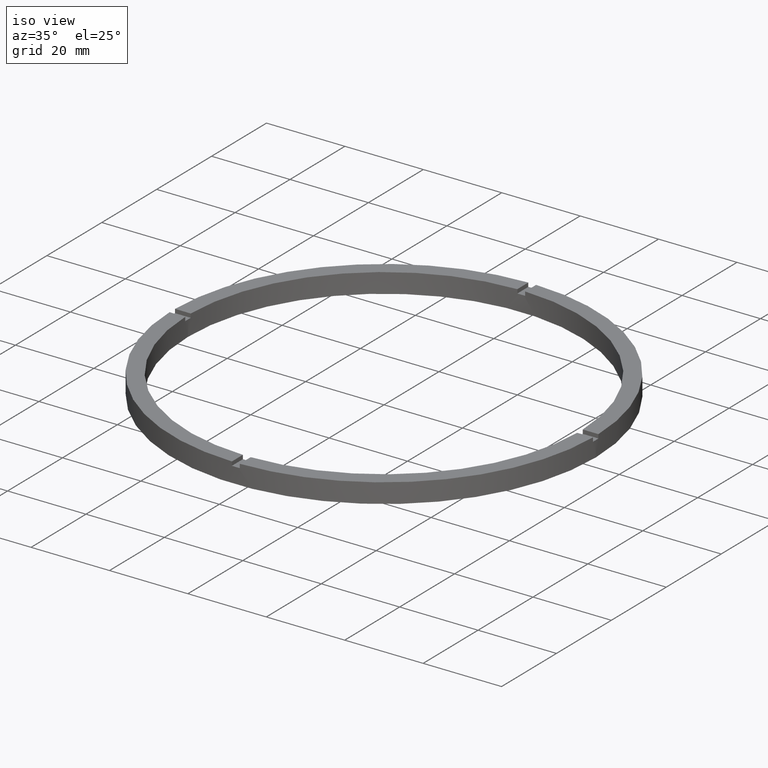
[diagram: clean part render]
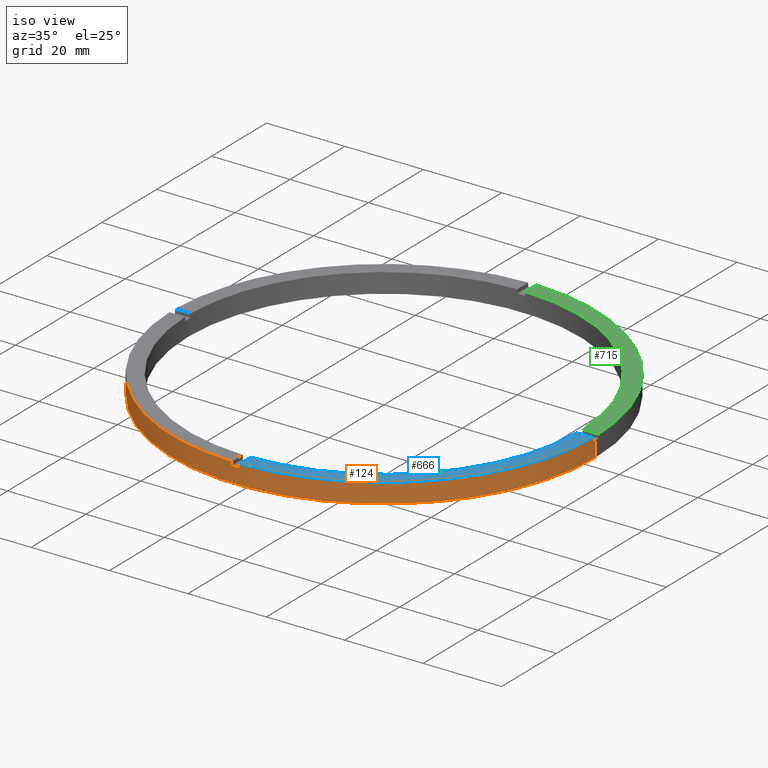
[diagram: same view with three faces highlighted in distinct colors, each labeled with its STEP entity id]
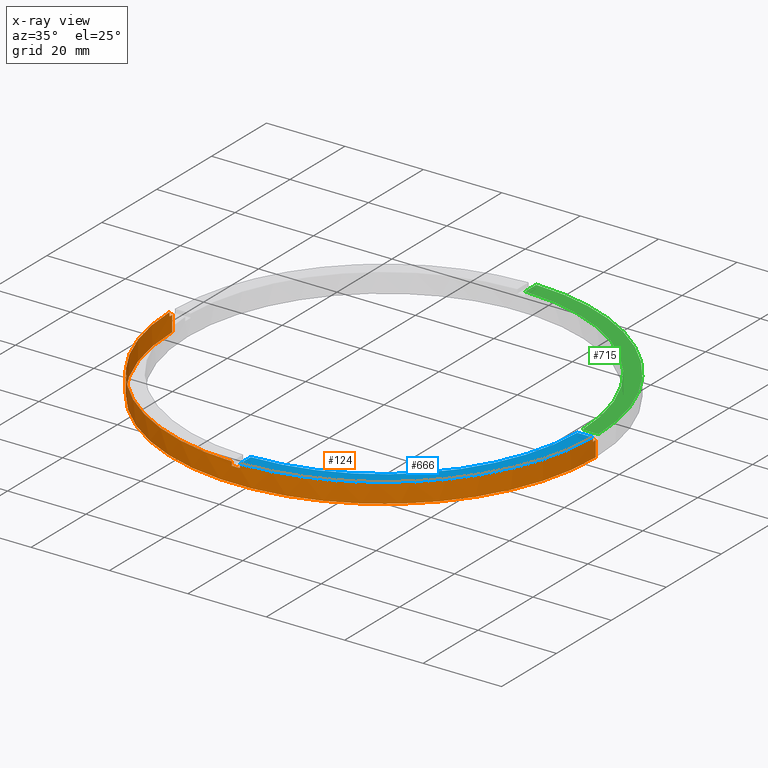
[diagram: x-ray of the same camera — body ghosted, the three highlighted faces saturated]
A machine part, iso view with three faces highlighted in distinct colors.
The next image is the same camera in x-ray (body ghosted, the three faces saturated) — at least one of them is partly hidden behind the body in this view.
Their STEP definitions:

[orange] entity #124 — the highlighted cylindrical surface (partial cylindrical patch) has radius 54 mm, axis along (-0, -0, -1).
#2 = CARTESIAN_POINT ( 'NONE',  ( 0.000000000000000000, 0.000000000000000000, 0.000000000000000000 ) ) ;
#4 = EDGE_CURVE ( 'NONE', #159, #285, #277, .T. ) ;
#15 = CARTESIAN_POINT ( 'NONE',  ( 54.00000000000000000, 6.613092715395707467E-15, 4.000000000000000000 ) ) ;
#27 = VECTOR ( 'NONE', #434, 1000.000000000000000 ) ;
#63 = FACE_OUTER_BOUND ( 'NONE', #186, .T. ) ;
#77 = LINE ( 'NONE', #770, #609 ) ;
#78 = CARTESIAN_POINT ( 'NONE',  ( 53.99073994677235078, -1.000000000000154321, 4.000000000000000000 ) ) ;
#82 = VECTOR ( 'NONE', #516, 1000.000000000000000 ) ;
#85 = EDGE_CURVE ( 'NONE', #689, #155, #546, .T. ) ;
#95 = LINE ( 'NONE', #487, #82 ) ;
#98 = CIRCLE ( 'NONE', #390, 54.00000000000000000 ) ;
#102 = CIRCLE ( 'NONE', #444, 54.00000000000000000 ) ;
#114 = ORIENTED_EDGE ( 'NONE', *, *, #248, .T. ) ;
#118 = ORIENTED_EDGE ( 'NONE', *, *, #231, .T. ) ;
#123 = ORIENTED_EDGE ( 'NONE', *, *, #581, .F. ) ;
#124 = ADVANCED_FACE ( 'NONE', ( #63 ), #316, .T. ) ;
#127 = ORIENTED_EDGE ( 'NONE', *, *, #85, .F. ) ;
#129 = CARTESIAN_POINT ( 'NONE',  ( -53.99073994677235078, -1.000000000000032863, 4.000000000000000000 ) ) ;
#150 = EDGE_CURVE ( 'NONE', #703, #191, #276, .T. ) ;
#155 = VERTEX_POINT ( 'NONE', #765 ) ;
#159 = VERTEX_POINT ( 'NONE', #649 ) ;
#160 = DIRECTION ( 'NONE',  ( 0.000000000000000000, 0.000000000000000000, 1.000000000000000000 ) ) ;
#165 = ORIENTED_EDGE ( 'NONE', *, *, #550, .F. ) ;
#185 = ORIENTED_EDGE ( 'NONE', *, *, #687, .F. ) ;
#186 = EDGE_LOOP ( 'NONE', ( #165, #616, #114, #127, #204, #185, #646, #700, #378, #123, #118, #468 ) ) ;
#188 = VERTEX_POINT ( 'NONE', #521 ) ;
#191 = VERTEX_POINT ( 'NONE', #15 ) ;
#198 = CARTESIAN_POINT ( 'NONE',  ( 0.9999999999998443467, -53.99073994677235788, 5.000000000000000000 ) ) ;
#204 = ORIENTED_EDGE ( 'NONE', *, *, #582, .T. ) ;
#229 = DIRECTION ( 'NONE',  ( 1.000000000000000000, 0.000000000000000000, 0.000000000000000000 ) ) ;
#231 = EDGE_CURVE ( 'NONE', #188, #556, #552, .T. ) ;
#242 = CARTESIAN_POINT ( 'NONE',  ( 0.000000000000000000, 0.000000000000000000, 5.000000000000000000 ) ) ;
#243 = AXIS2_PLACEMENT_3D ( 'NONE', #2, #675, #624 ) ;
#248 = EDGE_CURVE ( 'NONE', #703, #155, #586, .T. ) ;
#249 = CARTESIAN_POINT ( 'NONE',  ( 0.000000000000000000, 0.000000000000000000, 5.000000000000000000 ) ) ;
#268 = DIRECTION ( 'NONE',  ( 0.000000000000000000, 0.000000000000000000, 1.000000000000000000 ) ) ;
#270 = DIRECTION ( 'NONE',  ( -0.000000000000000000, -0.000000000000000000, -1.000000000000000000 ) ) ;
#276 = CIRCLE ( 'NONE', #522, 54.00000000000000000 ) ;
#277 = LINE ( 'NONE', #506, #578 ) ;
#279 = CARTESIAN_POINT ( 'NONE',  ( -54.00000000000000000, 0.000000000000000000, 5.000000000000000000 ) ) ;
#282 = AXIS2_PLACEMENT_3D ( 'NONE', #249, #386, #445 ) ;
#285 = VERTEX_POINT ( 'NONE', #129 ) ;
#316 = CYLINDRICAL_SURFACE ( 'NONE', #383, 54.00000000000000000 ) ;
#344 = CARTESIAN_POINT ( 'NONE',  ( -54.00000000000000000, 0.000000000000000000, 0.000000000000000000 ) ) ;
#356 = LINE ( 'NONE', #680, #364 ) ;
#364 = VECTOR ( 'NONE', #268, 1000.000000000000000 ) ;
#378 = ORIENTED_EDGE ( 'NONE', *, *, #4, .T. ) ;
#379 = CARTESIAN_POINT ( 'NONE',  ( 0.000000000000000000, 0.000000000000000000, 4.000000000000000000 ) ) ;
#382 = EDGE_CURVE ( 'NONE', #159, #757, #102, .T. ) ;
#383 = AXIS2_PLACEMENT_3D ( 'NONE', #242, #270, #494 ) ;
#386 = DIRECTION ( 'NONE',  ( 0.000000000000000000, 0.000000000000000000, 1.000000000000000000 ) ) ;
#390 = AXIS2_PLACEMENT_3D ( 'NONE', #379, #428, #541 ) ;
#393 = CARTESIAN_POINT ( 'NONE',  ( -1.000000000000155653, -53.99073994677235078, 4.000000000000000000 ) ) ;
#394 = CARTESIAN_POINT ( 'NONE',  ( 0.000000000000000000, 0.000000000000000000, 4.000000000000000000 ) ) ;
#398 = DIRECTION ( 'NONE',  ( -0.000000000000000000, -0.000000000000000000, -1.000000000000000000 ) ) ;
#403 = DIRECTION ( 'NONE',  ( 1.000000000000000000, 0.000000000000000000, 0.000000000000000000 ) ) ;
#408 = DIRECTION ( 'NONE',  ( 0.000000000000000000, 0.000000000000000000, 1.000000000000000000 ) ) ;
#412 = VERTEX_POINT ( 'NONE', #513 ) ;
#428 = DIRECTION ( 'NONE',  ( -0.000000000000000000, 0.000000000000000000, 1.000000000000000000 ) ) ;
#434 = DIRECTION ( 'NONE',  ( -0.000000000000000000, -0.000000000000000000, -1.000000000000000000 ) ) ;
#444 = AXIS2_PLACEMENT_3D ( 'NONE', #725, #160, #229 ) ;
#445 = DIRECTION ( 'NONE',  ( 1.000000000000000000, 0.000000000000000000, 0.000000000000000000 ) ) ;
#450 = VERTEX_POINT ( 'NONE', #472 ) ;
#468 = ORIENTED_EDGE ( 'NONE', *, *, #658, .T. ) ;
#472 = CARTESIAN_POINT ( 'NONE',  ( 0.9999999999998443467, -53.99073994677235788, 4.000000000000000000 ) ) ;
#487 = CARTESIAN_POINT ( 'NONE',  ( 0.9999999999998443467, -53.99073994677235788, 5.000000000000000000 ) ) ;
#494 = DIRECTION ( 'NONE',  ( -1.000000000000000000, 0.000000000000000000, 0.000000000000000000 ) ) ;
#506 = CARTESIAN_POINT ( 'NONE',  ( -53.99073994677235078, -1.000000000000032863, 5.000000000000000000 ) ) ;
#513 = CARTESIAN_POINT ( 'NONE',  ( 54.00000000000000000, 6.613092715395707467E-15, 0.000000000000000000 ) ) ;
#516 = DIRECTION ( 'NONE',  ( -0.000000000000000000, -0.000000000000000000, -1.000000000000000000 ) ) ;
#521 = CARTESIAN_POINT ( 'NONE',  ( -54.00000000000000000, 0.000000000000000000, 4.000000000000000000 ) ) ;
#522 = AXIS2_PLACEMENT_3D ( 'NONE', #394, #701, #660 ) ;
#541 = DIRECTION ( 'NONE',  ( 1.000000000000000000, 0.000000000000000000, 0.000000000000000000 ) ) ;
#546 = CIRCLE ( 'NONE', #282, 54.00000000000000000 ) ;
#550 = EDGE_CURVE ( 'NONE', #191, #412, #77, .T. ) ;
#552 = LINE ( 'NONE', #279, #27 ) ;
#556 = VERTEX_POINT ( 'NONE', #344 ) ;
#565 = VECTOR ( 'NONE', #734, 1000.000000000000000 ) ;
#576 = CARTESIAN_POINT ( 'NONE',  ( 0.000000000000000000, 0.000000000000000000, 4.000000000000000000 ) ) ;
#578 = VECTOR ( 'NONE', #615, 1000.000000000000000 ) ;
#579 = VERTEX_POINT ( 'NONE', #393 ) ;
#581 = EDGE_CURVE ( 'NONE', #188, #285, #619, .T. ) ;
#582 = EDGE_CURVE ( 'NONE', #689, #450, #95, .T. ) ;
#586 = LINE ( 'NONE', #622, #565 ) ;
#596 = CIRCLE ( 'NONE', #243, 54.00000000000000000 ) ;
#609 = VECTOR ( 'NONE', #398, 1000.000000000000000 ) ;
#615 = DIRECTION ( 'NONE',  ( -0.000000000000000000, -0.000000000000000000, -1.000000000000000000 ) ) ;
#616 = ORIENTED_EDGE ( 'NONE', *, *, #150, .F. ) ;
#619 = CIRCLE ( 'NONE', #761, 54.00000000000000000 ) ;
#622 = CARTESIAN_POINT ( 'NONE',  ( 53.99073994677235078, -1.000000000000154321, 5.000000000000000000 ) ) ;
#624 = DIRECTION ( 'NONE',  ( 1.000000000000000000, 0.000000000000000000, 0.000000000000000000 ) ) ;
#646 = ORIENTED_EDGE ( 'NONE', *, *, #691, .T. ) ;
#649 = CARTESIAN_POINT ( 'NONE',  ( -53.99073994677235078, -1.000000000000032863, 5.000000000000000000 ) ) ;
#658 = EDGE_CURVE ( 'NONE', #556, #412, #596, .T. ) ;
#660 = DIRECTION ( 'NONE',  ( 1.000000000000000000, 0.000000000000000000, 0.000000000000000000 ) ) ;
#670 = CARTESIAN_POINT ( 'NONE',  ( -1.000000000000155653, -53.99073994677235078, 5.000000000000000000 ) ) ;
#675 = DIRECTION ( 'NONE',  ( 0.000000000000000000, 0.000000000000000000, 1.000000000000000000 ) ) ;
#680 = CARTESIAN_POINT ( 'NONE',  ( -1.000000000000155653, -53.99073994677235078, 5.000000000000000000 ) ) ;
#687 = EDGE_CURVE ( 'NONE', #579, #450, #98, .T. ) ;
#689 = VERTEX_POINT ( 'NONE', #198 ) ;
#691 = EDGE_CURVE ( 'NONE', #579, #757, #356, .T. ) ;
#700 = ORIENTED_EDGE ( 'NONE', *, *, #382, .F. ) ;
#701 = DIRECTION ( 'NONE',  ( 0.000000000000000000, 0.000000000000000000, 1.000000000000000000 ) ) ;
#703 = VERTEX_POINT ( 'NONE', #78 ) ;
#725 = CARTESIAN_POINT ( 'NONE',  ( 0.000000000000000000, 0.000000000000000000, 5.000000000000000000 ) ) ;
#734 = DIRECTION ( 'NONE',  ( 0.000000000000000000, 0.000000000000000000, 1.000000000000000000 ) ) ;
#757 = VERTEX_POINT ( 'NONE', #670 ) ;
#761 = AXIS2_PLACEMENT_3D ( 'NONE', #576, #408, #403 ) ;
#765 = CARTESIAN_POINT ( 'NONE',  ( 53.99073994677235078, -1.000000000000154321, 5.000000000000000000 ) ) ;
#770 = CARTESIAN_POINT ( 'NONE',  ( 54.00000000000000000, 6.613092715395707467E-15, 5.000000000000000000 ) ) ;

[blue] entity #666 — the highlighted planar face has unit normal (0, 0, 1).
#9 = AXIS2_PLACEMENT_3D ( 'NONE', #774, #11, #346 ) ;
#11 = DIRECTION ( 'NONE',  ( 0.000000000000000000, 0.000000000000000000, 1.000000000000000000 ) ) ;
#23 = LINE ( 'NONE', #362, #293 ) ;
#85 = EDGE_CURVE ( 'NONE', #689, #155, #546, .T. ) ;
#99 = CARTESIAN_POINT ( 'NONE',  ( 0.9999999999998436806, -49.98999899979995831, 5.000000000000000000 ) ) ;
#112 = EDGE_CURVE ( 'NONE', #689, #639, #23, .T. ) ;
#117 = AXIS2_PLACEMENT_3D ( 'NONE', #370, #246, #244 ) ;
#121 = CARTESIAN_POINT ( 'NONE',  ( 43.99999999999999289, -1.000000000000154987, 5.000000000000000000 ) ) ;
#155 = VERTEX_POINT ( 'NONE', #765 ) ;
#156 = EDGE_CURVE ( 'NONE', #639, #695, #307, .T. ) ;
#183 = ORIENTED_EDGE ( 'NONE', *, *, #85, .T. ) ;
#198 = CARTESIAN_POINT ( 'NONE',  ( 0.9999999999998443467, -53.99073994677235788, 5.000000000000000000 ) ) ;
#202 = CARTESIAN_POINT ( 'NONE',  ( 49.98999899979995121, -1.000000000000154543, 5.000000000000000000 ) ) ;
#211 = ORIENTED_EDGE ( 'NONE', *, *, #112, .F. ) ;
#244 = DIRECTION ( 'NONE',  ( 1.000000000000000000, 0.000000000000000000, -0.000000000000000000 ) ) ;
#246 = DIRECTION ( 'NONE',  ( 0.000000000000000000, 0.000000000000000000, 1.000000000000000000 ) ) ;
#249 = CARTESIAN_POINT ( 'NONE',  ( 0.000000000000000000, 0.000000000000000000, 5.000000000000000000 ) ) ;
#250 = EDGE_CURVE ( 'NONE', #695, #155, #312, .T. ) ;
#282 = AXIS2_PLACEMENT_3D ( 'NONE', #249, #386, #445 ) ;
#293 = VECTOR ( 'NONE', #669, 1000.000000000000000 ) ;
#307 = CIRCLE ( 'NONE', #9, 50.00000000000000000 ) ;
#312 = LINE ( 'NONE', #121, #594 ) ;
#346 = DIRECTION ( 'NONE',  ( 1.000000000000000000, 0.000000000000000000, 0.000000000000000000 ) ) ;
#362 = CARTESIAN_POINT ( 'NONE',  ( 0.9999999999998427924, -44.00000000000017764, 5.000000000000000000 ) ) ;
#370 = CARTESIAN_POINT ( 'NONE',  ( 0.000000000000000000, 0.000000000000000000, 5.000000000000000000 ) ) ;
#386 = DIRECTION ( 'NONE',  ( 0.000000000000000000, 0.000000000000000000, 1.000000000000000000 ) ) ;
#407 = EDGE_LOOP ( 'NONE', ( #710, #744, #211, #183 ) ) ;
#445 = DIRECTION ( 'NONE',  ( 1.000000000000000000, 0.000000000000000000, 0.000000000000000000 ) ) ;
#546 = CIRCLE ( 'NONE', #282, 54.00000000000000000 ) ;
#594 = VECTOR ( 'NONE', #716, 1000.000000000000000 ) ;
#630 = FACE_OUTER_BOUND ( 'NONE', #407, .T. ) ;
#639 = VERTEX_POINT ( 'NONE', #99 ) ;
#666 = ADVANCED_FACE ( 'NONE', ( #630 ), #783, .T. ) ;
#669 = DIRECTION ( 'NONE',  ( -1.517883041479705961E-16, 1.000000000000000000, -0.000000000000000000 ) ) ;
#689 = VERTEX_POINT ( 'NONE', #198 ) ;
#695 = VERTEX_POINT ( 'NONE', #202 ) ;
#710 = ORIENTED_EDGE ( 'NONE', *, *, #250, .F. ) ;
#716 = DIRECTION ( 'NONE',  ( 1.000000000000000000, 6.505213034913025371E-17, 0.000000000000000000 ) ) ;
#744 = ORIENTED_EDGE ( 'NONE', *, *, #156, .F. ) ;
#765 = CARTESIAN_POINT ( 'NONE',  ( 53.99073994677235078, -1.000000000000154321, 5.000000000000000000 ) ) ;
#774 = CARTESIAN_POINT ( 'NONE',  ( 0.000000000000000000, 0.000000000000000000, 5.000000000000000000 ) ) ;
#783 = PLANE ( 'NONE',  #117 ) ;

[green] entity #715 — the highlighted planar face has unit normal (0, 0, 1).
#16 = EDGE_CURVE ( 'NONE', #146, #57, #47, .T. ) ;
#47 = CIRCLE ( 'NONE', #350, 54.00000000000000000 ) ;
#57 = VERTEX_POINT ( 'NONE', #207 ) ;
#81 = CIRCLE ( 'NONE', #419, 50.00000000000000000 ) ;
#92 = EDGE_CURVE ( 'NONE', #146, #210, #283, .T. ) ;
#141 = CARTESIAN_POINT ( 'NONE',  ( 0.9999999999999726885, 44.00000000000000000, 5.000000000000000000 ) ) ;
#145 = EDGE_LOOP ( 'NONE', ( #167, #164, #690, #674 ) ) ;
#146 = VERTEX_POINT ( 'NONE', #771 ) ;
#164 = ORIENTED_EDGE ( 'NONE', *, *, #400, .F. ) ;
#167 = ORIENTED_EDGE ( 'NONE', *, *, #440, .F. ) ;
#177 = VERTEX_POINT ( 'NONE', #465 ) ;
#207 = CARTESIAN_POINT ( 'NONE',  ( 0.9999999999999726885, 53.99073994677235078, 5.000000000000000000 ) ) ;
#210 = VERTEX_POINT ( 'NONE', #592 ) ;
#273 = DIRECTION ( 'NONE',  ( 1.000000000000000000, 0.000000000000000000, -0.000000000000000000 ) ) ;
#274 = VECTOR ( 'NONE', #740, 1000.000000000000000 ) ;
#283 = LINE ( 'NONE', #510, #274 ) ;
#290 = DIRECTION ( 'NONE',  ( 1.000000000000000000, 0.000000000000000000, 0.000000000000000000 ) ) ;
#308 = PLANE ( 'NONE',  #343 ) ;
#338 = VECTOR ( 'NONE', #553, 1000.000000000000000 ) ;
#343 = AXIS2_PLACEMENT_3D ( 'NONE', #498, #535, #273 ) ;
#350 = AXIS2_PLACEMENT_3D ( 'NONE', #542, #632, #290 ) ;
#400 = EDGE_CURVE ( 'NONE', #210, #177, #81, .T. ) ;
#419 = AXIS2_PLACEMENT_3D ( 'NONE', #453, #588, #573 ) ;
#440 = EDGE_CURVE ( 'NONE', #177, #57, #612, .T. ) ;
#453 = CARTESIAN_POINT ( 'NONE',  ( 0.000000000000000000, 0.000000000000000000, 5.000000000000000000 ) ) ;
#465 = CARTESIAN_POINT ( 'NONE',  ( 0.9999999999999726885, 49.98999899979995121, 5.000000000000000000 ) ) ;
#498 = CARTESIAN_POINT ( 'NONE',  ( 0.000000000000000000, 0.000000000000000000, 5.000000000000000000 ) ) ;
#510 = CARTESIAN_POINT ( 'NONE',  ( 43.99999999999999289, 0.9999999999998450129, 5.000000000000000000 ) ) ;
#535 = DIRECTION ( 'NONE',  ( 0.000000000000000000, 0.000000000000000000, 1.000000000000000000 ) ) ;
#542 = CARTESIAN_POINT ( 'NONE',  ( 0.000000000000000000, 0.000000000000000000, 5.000000000000000000 ) ) ;
#553 = DIRECTION ( 'NONE',  ( 0.000000000000000000, 1.000000000000000000, 0.000000000000000000 ) ) ;
#573 = DIRECTION ( 'NONE',  ( 1.000000000000000000, 0.000000000000000000, 0.000000000000000000 ) ) ;
#588 = DIRECTION ( 'NONE',  ( 0.000000000000000000, 0.000000000000000000, 1.000000000000000000 ) ) ;
#592 = CARTESIAN_POINT ( 'NONE',  ( 49.98999899979995831, 0.9999999999998454570, 5.000000000000000000 ) ) ;
#612 = LINE ( 'NONE', #141, #338 ) ;
#631 = FACE_OUTER_BOUND ( 'NONE', #145, .T. ) ;
#632 = DIRECTION ( 'NONE',  ( 0.000000000000000000, 0.000000000000000000, 1.000000000000000000 ) ) ;
#674 = ORIENTED_EDGE ( 'NONE', *, *, #16, .T. ) ;
#690 = ORIENTED_EDGE ( 'NONE', *, *, #92, .F. ) ;
#715 = ADVANCED_FACE ( 'NONE', ( #631 ), #308, .T. ) ;
#740 = DIRECTION ( 'NONE',  ( -1.000000000000000000, -6.505213034913025371E-17, -0.000000000000000000 ) ) ;
#771 = CARTESIAN_POINT ( 'NONE',  ( 53.99073994677235788, 0.9999999999998456790, 5.000000000000000000 ) ) ;